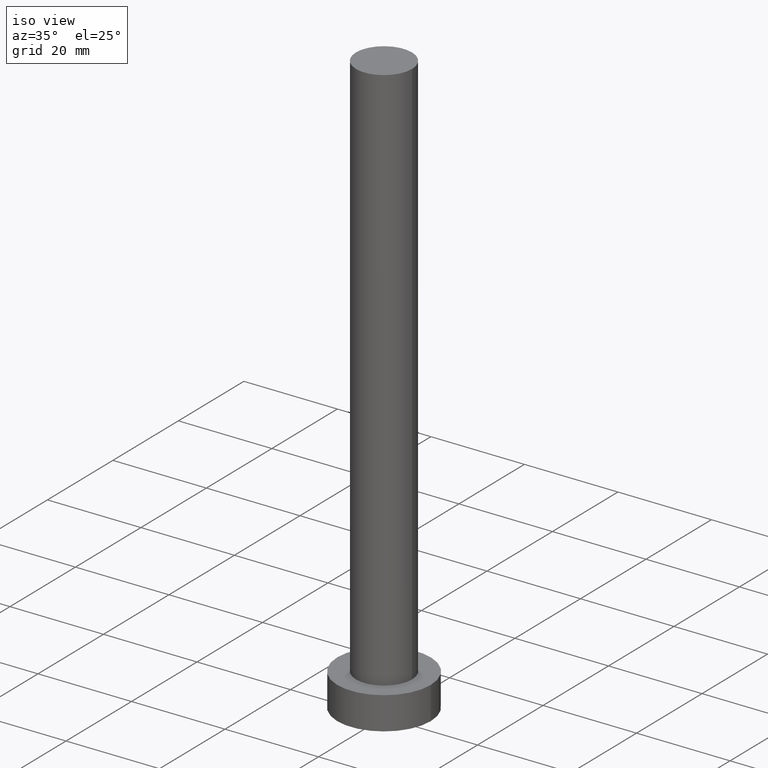
[diagram: clean part render]
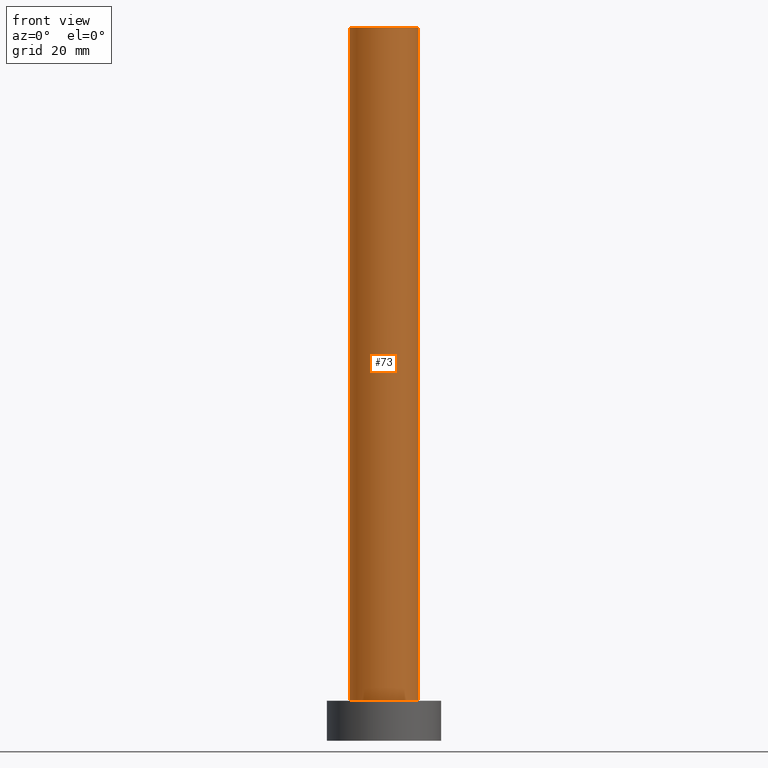
[diagram: tour spotlight — one face highlighted and labeled with its STEP entity id]
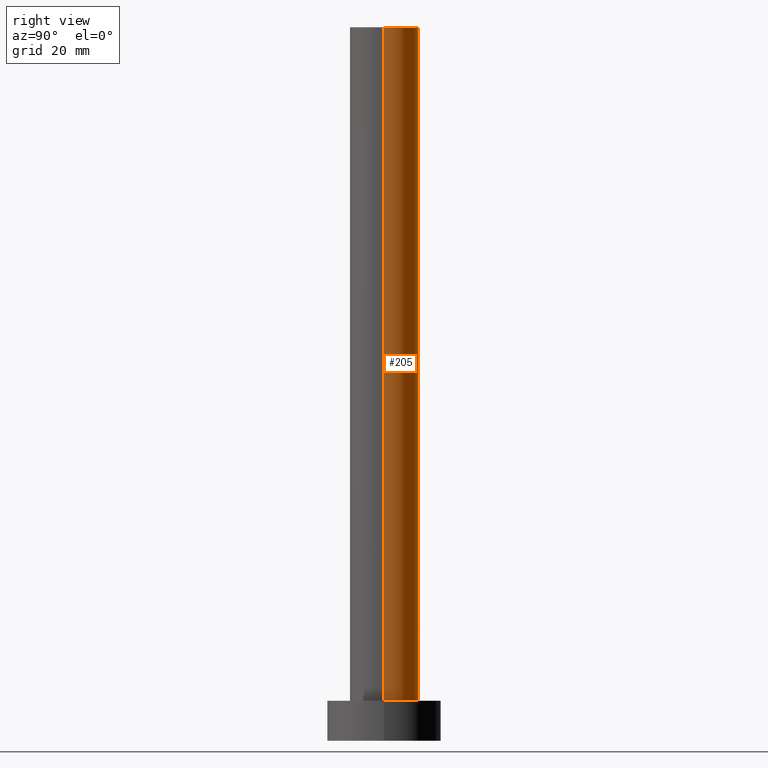
[diagram: tour spotlight — one face highlighted and labeled with its STEP entity id]
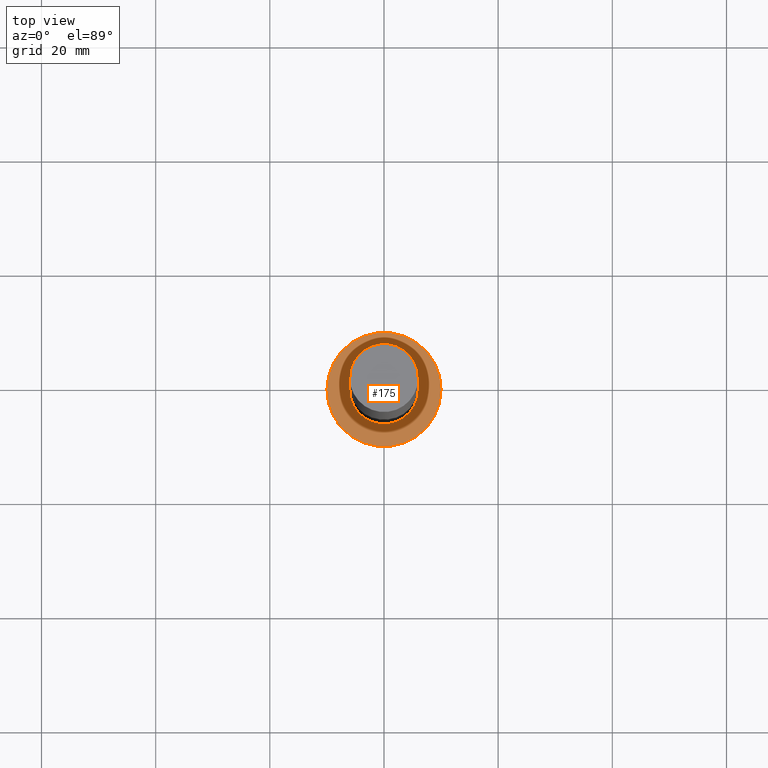
[diagram: tour spotlight — one face highlighted and labeled with its STEP entity id]
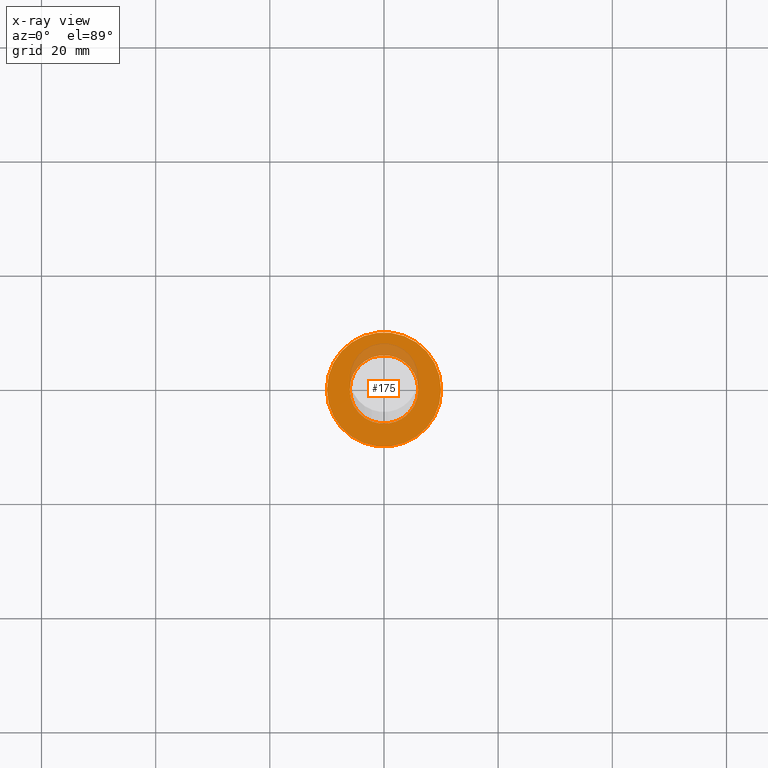
[diagram: x-ray of the same camera — body ghosted, this tour face saturated]
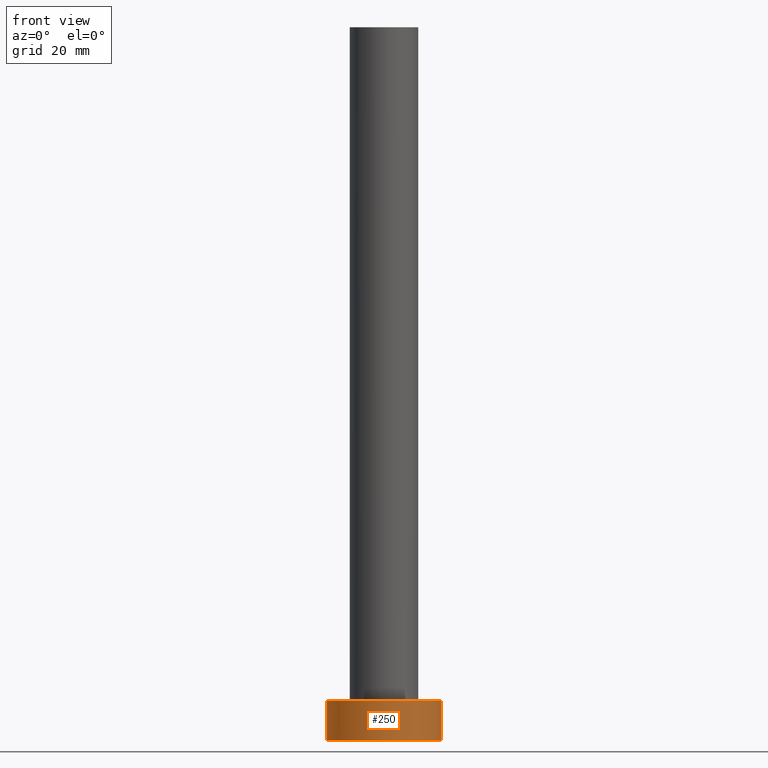
[diagram: tour spotlight — one face highlighted and labeled with its STEP entity id]
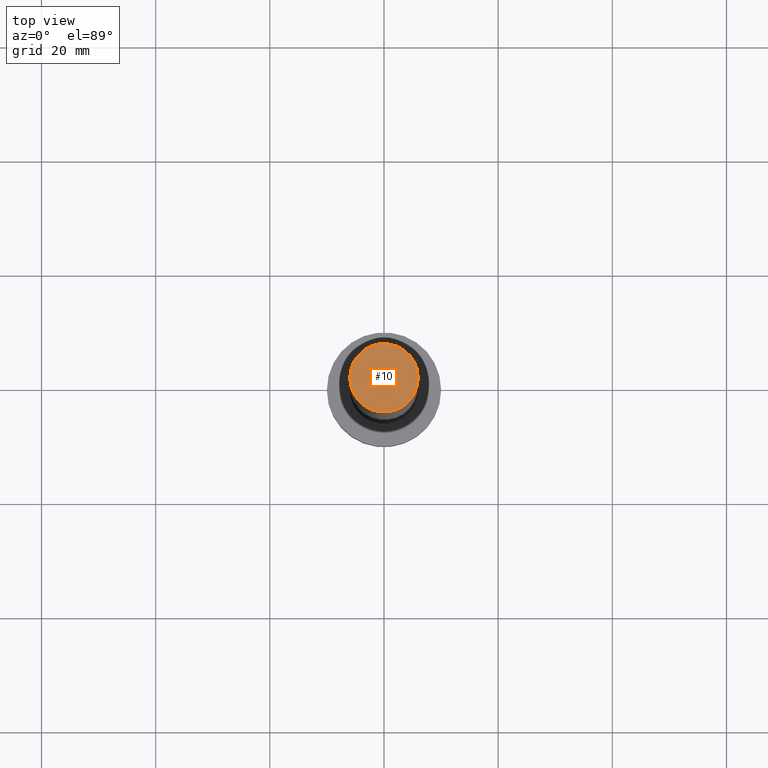
[diagram: tour spotlight — one face highlighted and labeled with its STEP entity id]
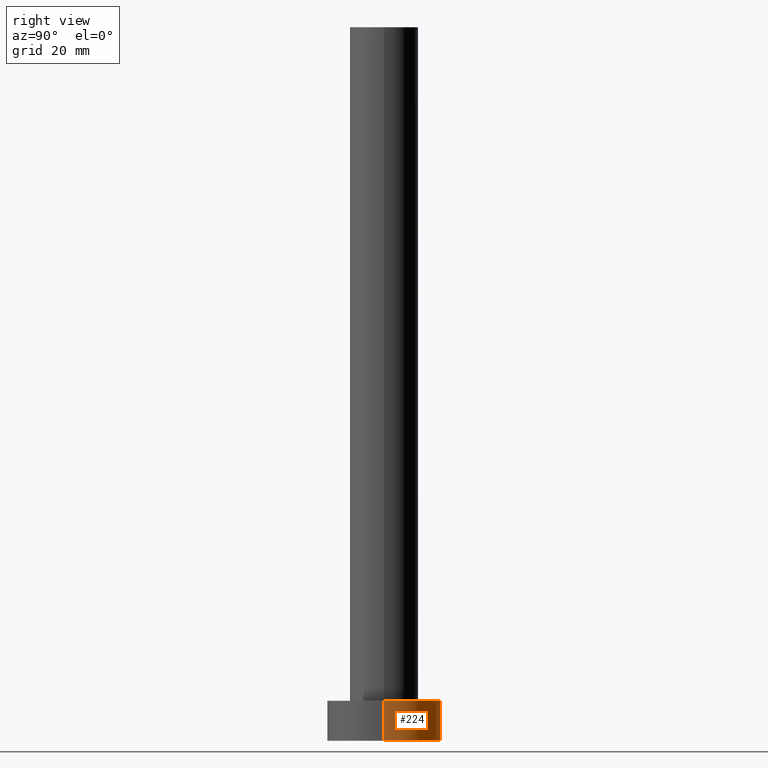
[diagram: tour spotlight — one face highlighted and labeled with its STEP entity id]
A machine part: a face-by-face anatomy tour. The part has 7 B-rep faces; the first image is the clean iso view, then the 6 largest visible faces are spotlighted one at a time (largest first), each with its STEP entity span.

Face 1 — front view, entity #73. In plain terms, the highlighted cylindrical surface (edge-blend (fillet) strip) has radius 6 mm, axis along (-0, -0, -1).
Definition (entity closure, byte-faithful):
#1 = EDGE_CURVE ( 'NONE', #164, #14, #253, .T. ) ;
#6 = DIRECTION ( 'NONE',  ( -0.000000000000000000, -0.000000000000000000, -1.000000000000000000 ) ) ;
#12 = DIRECTION ( 'NONE',  ( 1.000000000000000000, 0.000000000000000000, 0.000000000000000000 ) ) ;
#14 = VERTEX_POINT ( 'NONE', #201 ) ;
#17 = FACE_OUTER_BOUND ( 'NONE', #210, .T. ) ;
#18 = CARTESIAN_POINT ( 'NONE',  ( -6.000000000000000888, 0.000000000000000000, 125.0000000000000000 ) ) ;
#21 = AXIS2_PLACEMENT_3D ( 'NONE', #246, #245, #226 ) ;
#22 = LINE ( 'NONE', #46, #211 ) ;
#24 = AXIS2_PLACEMENT_3D ( 'NONE', #115, #192, #12 ) ;
#30 = ORIENTED_EDGE ( 'NONE', *, *, #251, .F. ) ;
#34 = VERTEX_POINT ( 'NONE', #127 ) ;
#40 = LINE ( 'NONE', #79, #116 ) ;
#46 = CARTESIAN_POINT ( 'NONE',  ( 6.000000000000000888, 7.347880794884120722E-16, 125.0000000000000000 ) ) ;
#54 = ORIENTED_EDGE ( 'NONE', *, *, #247, .T. ) ;
#68 = CIRCLE ( 'NONE', #21, 6.000000000000000888 ) ;
#73 = ADVANCED_FACE ( 'NONE', ( #17 ), #237, .T. ) ;
#78 = CARTESIAN_POINT ( 'NONE',  ( 0.000000000000000000, 0.000000000000000000, 125.0000000000000000 ) ) ;
#79 = CARTESIAN_POINT ( 'NONE',  ( -6.000000000000000888, 0.000000000000000000, 125.0000000000000000 ) ) ;
#107 = EDGE_CURVE ( 'NONE', #164, #176, #40, .T. ) ;
#108 = DIRECTION ( 'NONE',  ( -0.000000000000000000, -0.000000000000000000, -1.000000000000000000 ) ) ;
#115 = CARTESIAN_POINT ( 'NONE',  ( 0.000000000000000000, 0.000000000000000000, 125.0000000000000000 ) ) ;
#116 = VECTOR ( 'NONE', #221, 1000.000000000000000 ) ;
#127 = CARTESIAN_POINT ( 'NONE',  ( 6.000000000000000888, 7.347880794884120722E-16, 7.000000000000000000 ) ) ;
#164 = VERTEX_POINT ( 'NONE', #18 ) ;
#176 = VERTEX_POINT ( 'NONE', #241 ) ;
#192 = DIRECTION ( 'NONE',  ( 0.000000000000000000, 0.000000000000000000, 1.000000000000000000 ) ) ;
#193 = ORIENTED_EDGE ( 'NONE', *, *, #1, .F. ) ;
#201 = CARTESIAN_POINT ( 'NONE',  ( 6.000000000000000888, 7.347880794884120722E-16, 125.0000000000000000 ) ) ;
#210 = EDGE_LOOP ( 'NONE', ( #30, #193, #235, #54 ) ) ;
#211 = VECTOR ( 'NONE', #108, 1000.000000000000000 ) ;
#219 = DIRECTION ( 'NONE',  ( -1.000000000000000000, 0.000000000000000000, 0.000000000000000000 ) ) ;
#221 = DIRECTION ( 'NONE',  ( -0.000000000000000000, -0.000000000000000000, -1.000000000000000000 ) ) ;
#226 = DIRECTION ( 'NONE',  ( 1.000000000000000000, 0.000000000000000000, 0.000000000000000000 ) ) ;
#235 = ORIENTED_EDGE ( 'NONE', *, *, #107, .T. ) ;
#237 = CYLINDRICAL_SURFACE ( 'NONE', #240, 6.000000000000000888 ) ;
#240 = AXIS2_PLACEMENT_3D ( 'NONE', #78, #6, #219 ) ;
#241 = CARTESIAN_POINT ( 'NONE',  ( -6.000000000000000888, 0.000000000000000000, 7.000000000000000000 ) ) ;
#245 = DIRECTION ( 'NONE',  ( 0.000000000000000000, 0.000000000000000000, 1.000000000000000000 ) ) ;
#246 = CARTESIAN_POINT ( 'NONE',  ( 0.000000000000000000, 0.000000000000000000, 7.000000000000000000 ) ) ;
#247 = EDGE_CURVE ( 'NONE', #176, #34, #68, .T. ) ;
#251 = EDGE_CURVE ( 'NONE', #14, #34, #22, .T. ) ;
#253 = CIRCLE ( 'NONE', #24, 6.000000000000000888 ) ;

Face 2 — right view, entity #205. In plain terms, the highlighted cylindrical surface (edge-blend (fillet) strip) has radius 6 mm, axis along (-0, -0, -1).
Definition (entity closure, byte-faithful):
#4 = AXIS2_PLACEMENT_3D ( 'NONE', #239, #60, #255 ) ;
#14 = VERTEX_POINT ( 'NONE', #201 ) ;
#18 = CARTESIAN_POINT ( 'NONE',  ( -6.000000000000000888, 0.000000000000000000, 125.0000000000000000 ) ) ;
#20 = FACE_OUTER_BOUND ( 'NONE', #86, .T. ) ;
#22 = LINE ( 'NONE', #46, #211 ) ;
#34 = VERTEX_POINT ( 'NONE', #127 ) ;
#35 = EDGE_CURVE ( 'NONE', #34, #176, #61, .T. ) ;
#36 = ORIENTED_EDGE ( 'NONE', *, *, #251, .T. ) ;
#40 = LINE ( 'NONE', #79, #116 ) ;
#41 = DIRECTION ( 'NONE',  ( 1.000000000000000000, 0.000000000000000000, 0.000000000000000000 ) ) ;
#46 = CARTESIAN_POINT ( 'NONE',  ( 6.000000000000000888, 7.347880794884120722E-16, 125.0000000000000000 ) ) ;
#60 = DIRECTION ( 'NONE',  ( 0.000000000000000000, 0.000000000000000000, 1.000000000000000000 ) ) ;
#61 = CIRCLE ( 'NONE', #156, 6.000000000000000888 ) ;
#74 = CIRCLE ( 'NONE', #4, 6.000000000000000888 ) ;
#75 = CYLINDRICAL_SURFACE ( 'NONE', #254, 6.000000000000000888 ) ;
#79 = CARTESIAN_POINT ( 'NONE',  ( -6.000000000000000888, 0.000000000000000000, 125.0000000000000000 ) ) ;
#82 = DIRECTION ( 'NONE',  ( -0.000000000000000000, -0.000000000000000000, -1.000000000000000000 ) ) ;
#86 = EDGE_LOOP ( 'NONE', ( #145, #36, #169, #151 ) ) ;
#99 = CARTESIAN_POINT ( 'NONE',  ( 0.000000000000000000, 0.000000000000000000, 7.000000000000000000 ) ) ;
#106 = CARTESIAN_POINT ( 'NONE',  ( 0.000000000000000000, 0.000000000000000000, 125.0000000000000000 ) ) ;
#107 = EDGE_CURVE ( 'NONE', #164, #176, #40, .T. ) ;
#108 = DIRECTION ( 'NONE',  ( -0.000000000000000000, -0.000000000000000000, -1.000000000000000000 ) ) ;
#116 = VECTOR ( 'NONE', #221, 1000.000000000000000 ) ;
#127 = CARTESIAN_POINT ( 'NONE',  ( 6.000000000000000888, 7.347880794884120722E-16, 7.000000000000000000 ) ) ;
#145 = ORIENTED_EDGE ( 'NONE', *, *, #157, .F. ) ;
#151 = ORIENTED_EDGE ( 'NONE', *, *, #107, .F. ) ;
#156 = AXIS2_PLACEMENT_3D ( 'NONE', #99, #184, #41 ) ;
#157 = EDGE_CURVE ( 'NONE', #14, #164, #74, .T. ) ;
#164 = VERTEX_POINT ( 'NONE', #18 ) ;
#169 = ORIENTED_EDGE ( 'NONE', *, *, #35, .T. ) ;
#176 = VERTEX_POINT ( 'NONE', #241 ) ;
#184 = DIRECTION ( 'NONE',  ( 0.000000000000000000, 0.000000000000000000, 1.000000000000000000 ) ) ;
#201 = CARTESIAN_POINT ( 'NONE',  ( 6.000000000000000888, 7.347880794884120722E-16, 125.0000000000000000 ) ) ;
#205 = ADVANCED_FACE ( 'NONE', ( #20 ), #75, .T. ) ;
#211 = VECTOR ( 'NONE', #108, 1000.000000000000000 ) ;
#221 = DIRECTION ( 'NONE',  ( -0.000000000000000000, -0.000000000000000000, -1.000000000000000000 ) ) ;
#222 = DIRECTION ( 'NONE',  ( -1.000000000000000000, 0.000000000000000000, 0.000000000000000000 ) ) ;
#239 = CARTESIAN_POINT ( 'NONE',  ( 0.000000000000000000, 0.000000000000000000, 125.0000000000000000 ) ) ;
#241 = CARTESIAN_POINT ( 'NONE',  ( -6.000000000000000888, 0.000000000000000000, 7.000000000000000000 ) ) ;
#251 = EDGE_CURVE ( 'NONE', #14, #34, #22, .T. ) ;
#254 = AXIS2_PLACEMENT_3D ( 'NONE', #106, #82, #222 ) ;
#255 = DIRECTION ( 'NONE',  ( 1.000000000000000000, 0.000000000000000000, 0.000000000000000000 ) ) ;

Face 3 — top view, entity #175. An x-ray twin of the same camera follows (body ghosted, this face saturated) — the face is partly hidden behind the body. In plain terms, the highlighted planar face has unit normal (0, 0, 1).
Definition (entity closure, byte-faithful):
#3 = FACE_OUTER_BOUND ( 'NONE', #118, .T. ) ;
#15 = DIRECTION ( 'NONE',  ( 1.000000000000000000, 0.000000000000000000, -0.000000000000000000 ) ) ;
#21 = AXIS2_PLACEMENT_3D ( 'NONE', #246, #245, #226 ) ;
#29 = EDGE_CURVE ( 'NONE', #229, #129, #178, .T. ) ;
#34 = VERTEX_POINT ( 'NONE', #127 ) ;
#35 = EDGE_CURVE ( 'NONE', #34, #176, #61, .T. ) ;
#38 = CARTESIAN_POINT ( 'NONE',  ( 10.00000000000000000, 1.224646799147353256E-15, 7.000000000000000000 ) ) ;
#41 = DIRECTION ( 'NONE',  ( 1.000000000000000000, 0.000000000000000000, 0.000000000000000000 ) ) ;
#58 = DIRECTION ( 'NONE',  ( 0.000000000000000000, 0.000000000000000000, 1.000000000000000000 ) ) ;
#61 = CIRCLE ( 'NONE', #156, 6.000000000000000888 ) ;
#63 = CARTESIAN_POINT ( 'NONE',  ( 0.000000000000000000, 0.000000000000000000, 7.000000000000000000 ) ) ;
#65 = DIRECTION ( 'NONE',  ( 0.000000000000000000, 0.000000000000000000, 1.000000000000000000 ) ) ;
#68 = CIRCLE ( 'NONE', #21, 6.000000000000000888 ) ;
#69 = ORIENTED_EDGE ( 'NONE', *, *, #35, .F. ) ;
#72 = ORIENTED_EDGE ( 'NONE', *, *, #179, .T. ) ;
#81 = PLANE ( 'NONE',  #144 ) ;
#99 = CARTESIAN_POINT ( 'NONE',  ( 0.000000000000000000, 0.000000000000000000, 7.000000000000000000 ) ) ;
#118 = EDGE_LOOP ( 'NONE', ( #249, #72 ) ) ;
#125 = CARTESIAN_POINT ( 'NONE',  ( 0.000000000000000000, 0.000000000000000000, 7.000000000000000000 ) ) ;
#126 = AXIS2_PLACEMENT_3D ( 'NONE', #200, #58, #244 ) ;
#127 = CARTESIAN_POINT ( 'NONE',  ( 6.000000000000000888, 7.347880794884120722E-16, 7.000000000000000000 ) ) ;
#129 = VERTEX_POINT ( 'NONE', #38 ) ;
#137 = FACE_BOUND ( 'NONE', #234, .T. ) ;
#139 = DIRECTION ( 'NONE',  ( 1.000000000000000000, 0.000000000000000000, 0.000000000000000000 ) ) ;
#144 = AXIS2_PLACEMENT_3D ( 'NONE', #125, #160, #15 ) ;
#156 = AXIS2_PLACEMENT_3D ( 'NONE', #99, #184, #41 ) ;
#160 = DIRECTION ( 'NONE',  ( 0.000000000000000000, 0.000000000000000000, 1.000000000000000000 ) ) ;
#163 = CARTESIAN_POINT ( 'NONE',  ( -10.00000000000000000, 0.000000000000000000, 7.000000000000000000 ) ) ;
#175 = ADVANCED_FACE ( 'NONE', ( #137, #3 ), #81, .T. ) ;
#176 = VERTEX_POINT ( 'NONE', #241 ) ;
#178 = CIRCLE ( 'NONE', #126, 10.00000000000000000 ) ;
#179 = EDGE_CURVE ( 'NONE', #129, #229, #183, .T. ) ;
#183 = CIRCLE ( 'NONE', #236, 10.00000000000000000 ) ;
#184 = DIRECTION ( 'NONE',  ( 0.000000000000000000, 0.000000000000000000, 1.000000000000000000 ) ) ;
#200 = CARTESIAN_POINT ( 'NONE',  ( 0.000000000000000000, 0.000000000000000000, 7.000000000000000000 ) ) ;
#213 = ORIENTED_EDGE ( 'NONE', *, *, #247, .F. ) ;
#226 = DIRECTION ( 'NONE',  ( 1.000000000000000000, 0.000000000000000000, 0.000000000000000000 ) ) ;
#229 = VERTEX_POINT ( 'NONE', #163 ) ;
#234 = EDGE_LOOP ( 'NONE', ( #213, #69 ) ) ;
#236 = AXIS2_PLACEMENT_3D ( 'NONE', #63, #65, #139 ) ;
#241 = CARTESIAN_POINT ( 'NONE',  ( -6.000000000000000888, 0.000000000000000000, 7.000000000000000000 ) ) ;
#244 = DIRECTION ( 'NONE',  ( 1.000000000000000000, 0.000000000000000000, 0.000000000000000000 ) ) ;
#245 = DIRECTION ( 'NONE',  ( 0.000000000000000000, 0.000000000000000000, 1.000000000000000000 ) ) ;
#246 = CARTESIAN_POINT ( 'NONE',  ( 0.000000000000000000, 0.000000000000000000, 7.000000000000000000 ) ) ;
#247 = EDGE_CURVE ( 'NONE', #176, #34, #68, .T. ) ;
#249 = ORIENTED_EDGE ( 'NONE', *, *, #29, .T. ) ;

Face 4 — front view, entity #250. In plain terms, the highlighted cylindrical surface (partial cylindrical patch) has radius 10 mm, axis along (-0, -0, -1).
Definition (entity closure, byte-faithful):
#19 = CARTESIAN_POINT ( 'NONE',  ( -10.00000000000000000, 0.000000000000000000, 7.000000000000000000 ) ) ;
#29 = EDGE_CURVE ( 'NONE', #229, #129, #178, .T. ) ;
#38 = CARTESIAN_POINT ( 'NONE',  ( 10.00000000000000000, 1.224646799147353256E-15, 7.000000000000000000 ) ) ;
#45 = CARTESIAN_POINT ( 'NONE',  ( 0.000000000000000000, 0.000000000000000000, 7.000000000000000000 ) ) ;
#51 = ORIENTED_EDGE ( 'NONE', *, *, #161, .T. ) ;
#53 = EDGE_LOOP ( 'NONE', ( #148, #194, #51, #189 ) ) ;
#58 = DIRECTION ( 'NONE',  ( 0.000000000000000000, 0.000000000000000000, 1.000000000000000000 ) ) ;
#67 = DIRECTION ( 'NONE',  ( -0.000000000000000000, -0.000000000000000000, -1.000000000000000000 ) ) ;
#76 = CIRCLE ( 'NONE', #97, 10.00000000000000000 ) ;
#87 = VECTOR ( 'NONE', #105, 1000.000000000000000 ) ;
#89 = VERTEX_POINT ( 'NONE', #196 ) ;
#97 = AXIS2_PLACEMENT_3D ( 'NONE', #140, #185, #141 ) ;
#101 = VECTOR ( 'NONE', #159, 1000.000000000000000 ) ;
#105 = DIRECTION ( 'NONE',  ( -0.000000000000000000, -0.000000000000000000, -1.000000000000000000 ) ) ;
#113 = AXIS2_PLACEMENT_3D ( 'NONE', #45, #67, #167 ) ;
#121 = CARTESIAN_POINT ( 'NONE',  ( 10.00000000000000000, 1.224646799147353256E-15, 7.000000000000000000 ) ) ;
#126 = AXIS2_PLACEMENT_3D ( 'NONE', #200, #58, #244 ) ;
#129 = VERTEX_POINT ( 'NONE', #38 ) ;
#132 = VERTEX_POINT ( 'NONE', #180 ) ;
#134 = EDGE_CURVE ( 'NONE', #129, #132, #177, .T. ) ;
#140 = CARTESIAN_POINT ( 'NONE',  ( 0.000000000000000000, 0.000000000000000000, 0.000000000000000000 ) ) ;
#141 = DIRECTION ( 'NONE',  ( 1.000000000000000000, 0.000000000000000000, 0.000000000000000000 ) ) ;
#148 = ORIENTED_EDGE ( 'NONE', *, *, #134, .F. ) ;
#159 = DIRECTION ( 'NONE',  ( -0.000000000000000000, -0.000000000000000000, -1.000000000000000000 ) ) ;
#161 = EDGE_CURVE ( 'NONE', #229, #89, #198, .T. ) ;
#163 = CARTESIAN_POINT ( 'NONE',  ( -10.00000000000000000, 0.000000000000000000, 7.000000000000000000 ) ) ;
#167 = DIRECTION ( 'NONE',  ( -1.000000000000000000, 0.000000000000000000, 0.000000000000000000 ) ) ;
#177 = LINE ( 'NONE', #121, #101 ) ;
#178 = CIRCLE ( 'NONE', #126, 10.00000000000000000 ) ;
#180 = CARTESIAN_POINT ( 'NONE',  ( 10.00000000000000000, 1.224646799147353256E-15, 0.000000000000000000 ) ) ;
#185 = DIRECTION ( 'NONE',  ( 0.000000000000000000, 0.000000000000000000, 1.000000000000000000 ) ) ;
#186 = CYLINDRICAL_SURFACE ( 'NONE', #113, 10.00000000000000000 ) ;
#189 = ORIENTED_EDGE ( 'NONE', *, *, #214, .T. ) ;
#194 = ORIENTED_EDGE ( 'NONE', *, *, #29, .F. ) ;
#196 = CARTESIAN_POINT ( 'NONE',  ( -10.00000000000000000, 0.000000000000000000, 0.000000000000000000 ) ) ;
#198 = LINE ( 'NONE', #19, #87 ) ;
#200 = CARTESIAN_POINT ( 'NONE',  ( 0.000000000000000000, 0.000000000000000000, 7.000000000000000000 ) ) ;
#204 = FACE_OUTER_BOUND ( 'NONE', #53, .T. ) ;
#214 = EDGE_CURVE ( 'NONE', #89, #132, #76, .T. ) ;
#229 = VERTEX_POINT ( 'NONE', #163 ) ;
#244 = DIRECTION ( 'NONE',  ( 1.000000000000000000, 0.000000000000000000, 0.000000000000000000 ) ) ;
#250 = ADVANCED_FACE ( 'NONE', ( #204 ), #186, .T. ) ;

Face 5 — top view, entity #10. In plain terms, the highlighted planar face has unit normal (0, 0, 1).
Definition (entity closure, byte-faithful):
#1 = EDGE_CURVE ( 'NONE', #164, #14, #253, .T. ) ;
#4 = AXIS2_PLACEMENT_3D ( 'NONE', #239, #60, #255 ) ;
#10 = ADVANCED_FACE ( 'NONE', ( #94 ), #59, .T. ) ;
#12 = DIRECTION ( 'NONE',  ( 1.000000000000000000, 0.000000000000000000, 0.000000000000000000 ) ) ;
#14 = VERTEX_POINT ( 'NONE', #201 ) ;
#18 = CARTESIAN_POINT ( 'NONE',  ( -6.000000000000000888, 0.000000000000000000, 125.0000000000000000 ) ) ;
#24 = AXIS2_PLACEMENT_3D ( 'NONE', #115, #192, #12 ) ;
#59 = PLANE ( 'NONE',  #172 ) ;
#60 = DIRECTION ( 'NONE',  ( 0.000000000000000000, 0.000000000000000000, 1.000000000000000000 ) ) ;
#74 = CIRCLE ( 'NONE', #4, 6.000000000000000888 ) ;
#94 = FACE_OUTER_BOUND ( 'NONE', #131, .T. ) ;
#115 = CARTESIAN_POINT ( 'NONE',  ( 0.000000000000000000, 0.000000000000000000, 125.0000000000000000 ) ) ;
#120 = CARTESIAN_POINT ( 'NONE',  ( 0.000000000000000000, 0.000000000000000000, 125.0000000000000000 ) ) ;
#131 = EDGE_LOOP ( 'NONE', ( #133, #147 ) ) ;
#133 = ORIENTED_EDGE ( 'NONE', *, *, #1, .T. ) ;
#147 = ORIENTED_EDGE ( 'NONE', *, *, #157, .T. ) ;
#157 = EDGE_CURVE ( 'NONE', #14, #164, #74, .T. ) ;
#158 = DIRECTION ( 'NONE',  ( 0.000000000000000000, 0.000000000000000000, 1.000000000000000000 ) ) ;
#164 = VERTEX_POINT ( 'NONE', #18 ) ;
#172 = AXIS2_PLACEMENT_3D ( 'NONE', #120, #158, #223 ) ;
#192 = DIRECTION ( 'NONE',  ( 0.000000000000000000, 0.000000000000000000, 1.000000000000000000 ) ) ;
#201 = CARTESIAN_POINT ( 'NONE',  ( 6.000000000000000888, 7.347880794884120722E-16, 125.0000000000000000 ) ) ;
#223 = DIRECTION ( 'NONE',  ( 1.000000000000000000, 0.000000000000000000, -0.000000000000000000 ) ) ;
#239 = CARTESIAN_POINT ( 'NONE',  ( 0.000000000000000000, 0.000000000000000000, 125.0000000000000000 ) ) ;
#253 = CIRCLE ( 'NONE', #24, 6.000000000000000888 ) ;
#255 = DIRECTION ( 'NONE',  ( 1.000000000000000000, 0.000000000000000000, 0.000000000000000000 ) ) ;

Face 6 — right view, entity #224. In plain terms, the highlighted cylindrical surface (partial cylindrical patch) has radius 10 mm, axis along (-0, -0, -1).
Definition (entity closure, byte-faithful):
#19 = CARTESIAN_POINT ( 'NONE',  ( -10.00000000000000000, 0.000000000000000000, 7.000000000000000000 ) ) ;
#23 = FACE_OUTER_BOUND ( 'NONE', #91, .T. ) ;
#31 = AXIS2_PLACEMENT_3D ( 'NONE', #43, #110, #146 ) ;
#33 = ORIENTED_EDGE ( 'NONE', *, *, #179, .F. ) ;
#38 = CARTESIAN_POINT ( 'NONE',  ( 10.00000000000000000, 1.224646799147353256E-15, 7.000000000000000000 ) ) ;
#43 = CARTESIAN_POINT ( 'NONE',  ( 0.000000000000000000, 0.000000000000000000, 7.000000000000000000 ) ) ;
#47 = ORIENTED_EDGE ( 'NONE', *, *, #216, .T. ) ;
#63 = CARTESIAN_POINT ( 'NONE',  ( 0.000000000000000000, 0.000000000000000000, 7.000000000000000000 ) ) ;
#65 = DIRECTION ( 'NONE',  ( 0.000000000000000000, 0.000000000000000000, 1.000000000000000000 ) ) ;
#66 = DIRECTION ( 'NONE',  ( 1.000000000000000000, 0.000000000000000000, 0.000000000000000000 ) ) ;
#87 = VECTOR ( 'NONE', #105, 1000.000000000000000 ) ;
#89 = VERTEX_POINT ( 'NONE', #196 ) ;
#91 = EDGE_LOOP ( 'NONE', ( #33, #215, #47, #112 ) ) ;
#101 = VECTOR ( 'NONE', #159, 1000.000000000000000 ) ;
#105 = DIRECTION ( 'NONE',  ( -0.000000000000000000, -0.000000000000000000, -1.000000000000000000 ) ) ;
#110 = DIRECTION ( 'NONE',  ( -0.000000000000000000, -0.000000000000000000, -1.000000000000000000 ) ) ;
#112 = ORIENTED_EDGE ( 'NONE', *, *, #161, .F. ) ;
#121 = CARTESIAN_POINT ( 'NONE',  ( 10.00000000000000000, 1.224646799147353256E-15, 7.000000000000000000 ) ) ;
#129 = VERTEX_POINT ( 'NONE', #38 ) ;
#132 = VERTEX_POINT ( 'NONE', #180 ) ;
#134 = EDGE_CURVE ( 'NONE', #129, #132, #177, .T. ) ;
#139 = DIRECTION ( 'NONE',  ( 1.000000000000000000, 0.000000000000000000, 0.000000000000000000 ) ) ;
#142 = CIRCLE ( 'NONE', #190, 10.00000000000000000 ) ;
#146 = DIRECTION ( 'NONE',  ( -1.000000000000000000, 0.000000000000000000, 0.000000000000000000 ) ) ;
#159 = DIRECTION ( 'NONE',  ( -0.000000000000000000, -0.000000000000000000, -1.000000000000000000 ) ) ;
#161 = EDGE_CURVE ( 'NONE', #229, #89, #198, .T. ) ;
#163 = CARTESIAN_POINT ( 'NONE',  ( -10.00000000000000000, 0.000000000000000000, 7.000000000000000000 ) ) ;
#165 = DIRECTION ( 'NONE',  ( 0.000000000000000000, 0.000000000000000000, 1.000000000000000000 ) ) ;
#177 = LINE ( 'NONE', #121, #101 ) ;
#179 = EDGE_CURVE ( 'NONE', #129, #229, #183, .T. ) ;
#180 = CARTESIAN_POINT ( 'NONE',  ( 10.00000000000000000, 1.224646799147353256E-15, 0.000000000000000000 ) ) ;
#183 = CIRCLE ( 'NONE', #236, 10.00000000000000000 ) ;
#190 = AXIS2_PLACEMENT_3D ( 'NONE', #248, #165, #66 ) ;
#196 = CARTESIAN_POINT ( 'NONE',  ( -10.00000000000000000, 0.000000000000000000, 0.000000000000000000 ) ) ;
#198 = LINE ( 'NONE', #19, #87 ) ;
#215 = ORIENTED_EDGE ( 'NONE', *, *, #134, .T. ) ;
#216 = EDGE_CURVE ( 'NONE', #132, #89, #142, .T. ) ;
#224 = ADVANCED_FACE ( 'NONE', ( #23 ), #225, .T. ) ;
#225 = CYLINDRICAL_SURFACE ( 'NONE', #31, 10.00000000000000000 ) ;
#229 = VERTEX_POINT ( 'NONE', #163 ) ;
#236 = AXIS2_PLACEMENT_3D ( 'NONE', #63, #65, #139 ) ;
#248 = CARTESIAN_POINT ( 'NONE',  ( 0.000000000000000000, 0.000000000000000000, 0.000000000000000000 ) ) ;